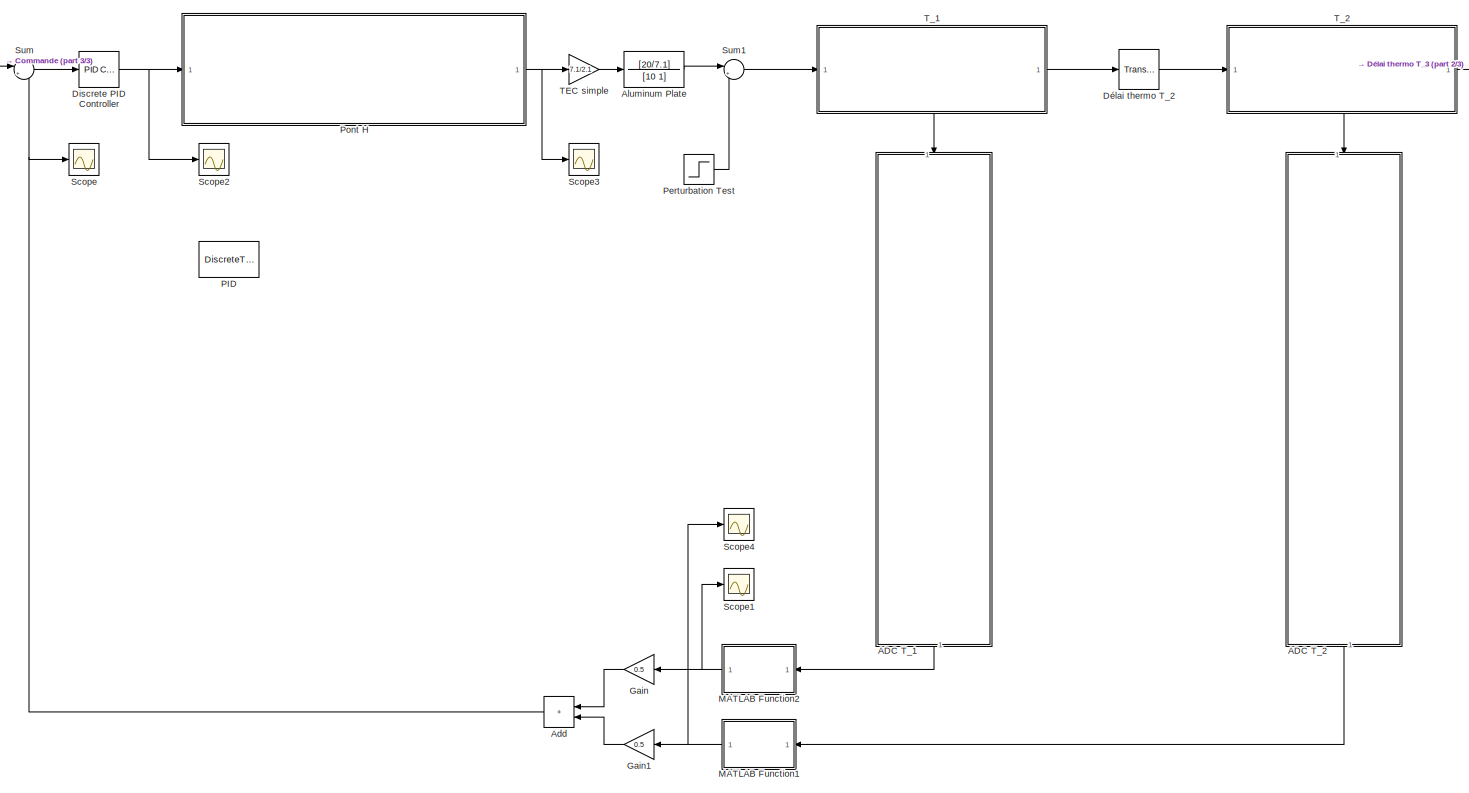
[diagram: root canvas - part 1/3, most of the canvas]
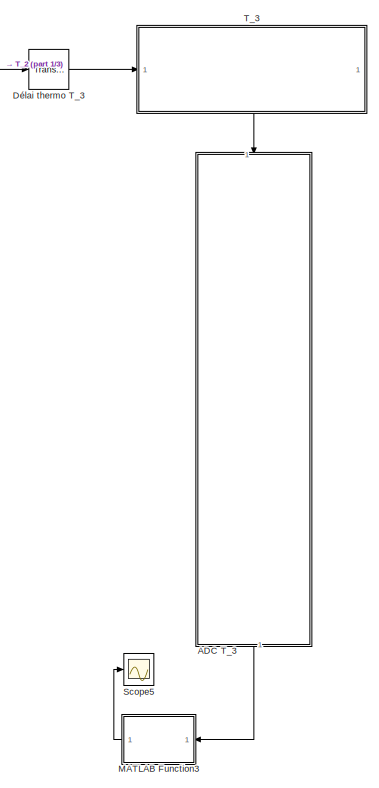
[diagram: root canvas - part 2/3, right side, full height]
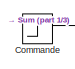
[diagram: root canvas - part 3/3, top left region]
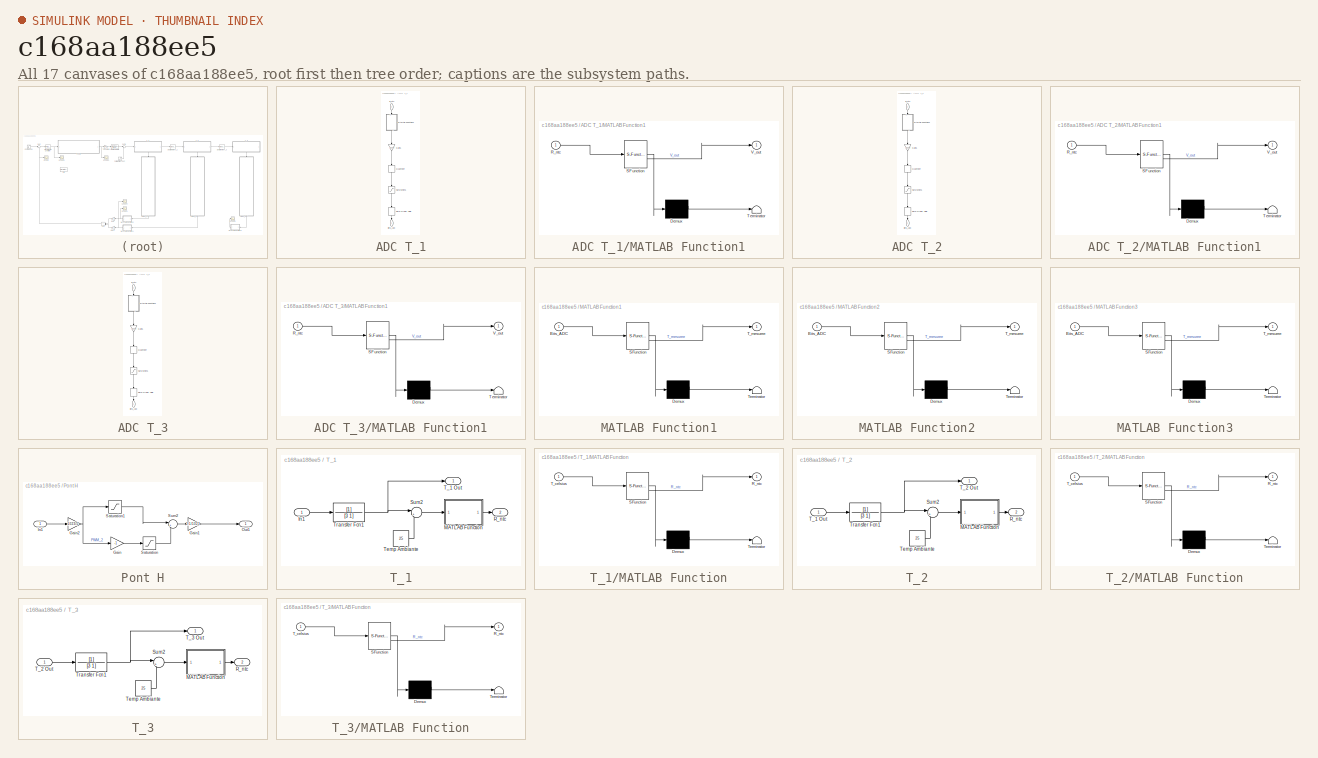
[diagram: thumbnail index - all 17 canvases of the model, root first then tree order]
MODEL slx_c168aa188ee5
KIND model
CONFIG AbsTol = auto
CONFIG EnableMultiTasking = off
CONFIG FixedStep = auto
CONFIG MaxStep = auto
CONFIG MinStep = auto
CONFIG RelTol = 1e-3
CONFIG SampleTimeConstraint = Unconstrained
CONFIG SolverName = VariableStepAuto
CONFIG StartTime = 0.0
CONFIG StopTime = 200
WORKSPACE source: mxarray member
WORKSPACE b_1: Simulink.Parameter (value not decoded)
WORKSPACE b_2: Simulink.Parameter (value not decoded)
WORKSPACE b_3: Simulink.Parameter (value not decoded)
BLOCK [SubSystem] ADC T_1
  NameLocation = left
BLOCK [Outport] ADC T_1/Bits_ADC
  NameLocation = left
BLOCK [Gain] ADC T_1/Gain1
  Gain = 1023/5
  NameLocation = left
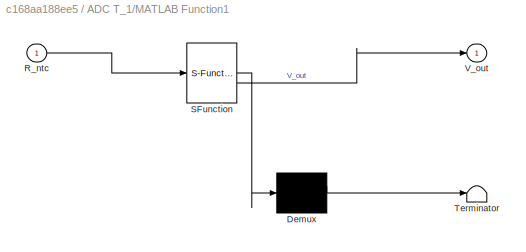
BLOCK [SubSystem] ADC T_1/MATLAB Function1
  ErrorFcn = Stateflow.Translate.translate
  NameLocation = left
  PermitHierarchicalResolution = ExplicitOnly
  SFBlockType = MATLAB Function
  TreatAsAtomicUnit = on
BLOCK [Demux] ADC T_1/MATLAB Function1/ Demux 
  Outputs = 1
BLOCK [S-Function] ADC T_1/MATLAB Function1/ SFunction 
  EnableBusSupport = on
  FunctionName = sf_sfun
  PortCounts = [1 2]
  SFcnIsStateOwnerBlock = off
  SFunctionDeploymentMode = off
  Tag = Stateflow S-Function 1
BLOCK [Terminator] ADC T_1/MATLAB Function1/ Terminator 
BLOCK [Inport] ADC T_1/MATLAB Function1/R_ntc
BLOCK [Outport] ADC T_1/MATLAB Function1/V_out
BLOCK [Quantizer] ADC T_1/Quantizer
  NameLocation = left
  QuantizationInterval = 1
BLOCK [Inport] ADC T_1/R_ntc
  NameLocation = left
BLOCK [Saturate] ADC T_1/Saturation1
  LowerLimit = 0
  NameLocation = left
  UpperLimit = 1023
BLOCK [ZeroOrderHold] ADC T_1/Zero-Order Hold
  NameLocation = left
  SampleTime = 0.01
BLOCK [SubSystem] ADC T_2
  NameLocation = left
BLOCK [Outport] ADC T_2/Bits_ADC
  NameLocation = left
BLOCK [Gain] ADC T_2/Gain1
  Gain = 1023/5
  NameLocation = left
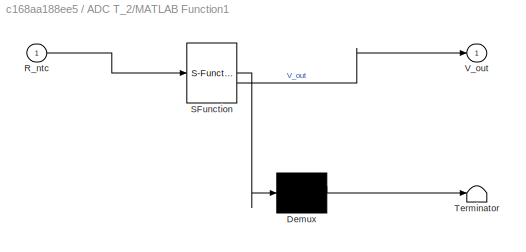
BLOCK [SubSystem] ADC T_2/MATLAB Function1
  ErrorFcn = Stateflow.Translate.translate
  NameLocation = left
  PermitHierarchicalResolution = ExplicitOnly
  SFBlockType = MATLAB Function
  TreatAsAtomicUnit = on
BLOCK [Demux] ADC T_2/MATLAB Function1/ Demux 
  Outputs = 1
BLOCK [S-Function] ADC T_2/MATLAB Function1/ SFunction 
  EnableBusSupport = on
  FunctionName = sf_sfun
  PortCounts = [1 2]
  SFcnIsStateOwnerBlock = off
  SFunctionDeploymentMode = off
  Tag = Stateflow S-Function 5
BLOCK [Terminator] ADC T_2/MATLAB Function1/ Terminator 
BLOCK [Inport] ADC T_2/MATLAB Function1/R_ntc
BLOCK [Outport] ADC T_2/MATLAB Function1/V_out
BLOCK [Quantizer] ADC T_2/Quantizer
  NameLocation = left
  QuantizationInterval = 1
BLOCK [Inport] ADC T_2/R_ntc
  NameLocation = left
BLOCK [Saturate] ADC T_2/Saturation1
  LowerLimit = 0
  NameLocation = left
  UpperLimit = 1023
BLOCK [ZeroOrderHold] ADC T_2/Zero-Order Hold
  NameLocation = left
  SampleTime = 0.01
BLOCK [SubSystem] ADC T_3
  NameLocation = left
BLOCK [Outport] ADC T_3/Bits_ADC
  NameLocation = left
BLOCK [Gain] ADC T_3/Gain1
  Gain = 1023/5
  NameLocation = left
BLOCK [SubSystem] ADC T_3/MATLAB Function1
  ErrorFcn = Stateflow.Translate.translate
  NameLocation = left
  PermitHierarchicalResolution = ExplicitOnly
  SFBlockType = MATLAB Function
  TreatAsAtomicUnit = on
BLOCK [Demux] ADC T_3/MATLAB Function1/ Demux 
  Outputs = 1
BLOCK [S-Function] ADC T_3/MATLAB Function1/ SFunction 
  EnableBusSupport = on
  FunctionName = sf_sfun
  PortCounts = [1 2]
  SFcnIsStateOwnerBlock = off
  SFunctionDeploymentMode = off
  Tag = Stateflow S-Function 7
BLOCK [Terminator] ADC T_3/MATLAB Function1/ Terminator 
BLOCK [Inport] ADC T_3/MATLAB Function1/R_ntc
BLOCK [Outport] ADC T_3/MATLAB Function1/V_out
BLOCK [Quantizer] ADC T_3/Quantizer
  NameLocation = left
  QuantizationInterval = 1
BLOCK [Inport] ADC T_3/R_ntc
  NameLocation = left
BLOCK [Saturate] ADC T_3/Saturation1
  LowerLimit = 0
  NameLocation = left
  UpperLimit = 1023
BLOCK [ZeroOrderHold] ADC T_3/Zero-Order Hold
  NameLocation = left
  SampleTime = 0.01
BLOCK [Sum] Add
  IconShape = rectangular
  NameLocation = top
BLOCK [TransferFcn] Aluminum Plate
  Denominator = [10 1]
  Numerator = [20/7.1]
BLOCK [Step] Commande
  After = 40
  Before = 25
  SampleTime = 0
  Time = 0
BLOCK [Reference] Discrete PID Controller  REF=slpidlib/PID Controller
  LibrarySourceBlock = simulink/Discrete/Discrete PID Controller
  SourceBlock = slpidlib/PID Controller
  SourceType = PID 1dof
BLOCK [TransportDelay] Délai thermo T_2
  DelayTime = 7
BLOCK [TransportDelay] Délai thermo T_3
  DelayTime = 14
BLOCK [Gain] Gain
  Gain = 0.5
  NameLocation = top
BLOCK [Gain] Gain1
  Gain = 0.5
  NameLocation = top
BLOCK [SubSystem] MATLAB Function1
  ErrorFcn = Stateflow.Translate.translate
  NameLocation = top
  PermitHierarchicalResolution = ExplicitOnly
  SFBlockType = MATLAB Function
  TreatAsAtomicUnit = on
BLOCK [Demux] MATLAB Function1/ Demux 
  Outputs = 1
BLOCK [S-Function] MATLAB Function1/ SFunction 
  EnableBusSupport = on
  FunctionName = sf_sfun
  PortCounts = [1 2]
  SFcnIsStateOwnerBlock = off
  SFunctionDeploymentMode = off
  Tag = Stateflow S-Function 6
BLOCK [Terminator] MATLAB Function1/ Terminator 
BLOCK [Inport] MATLAB Function1/Bits_ADC
BLOCK [Outport] MATLAB Function1/T_mesuree
BLOCK [SubSystem] MATLAB Function2
  ErrorFcn = Stateflow.Translate.translate
  NameLocation = top
  PermitHierarchicalResolution = ExplicitOnly
  SFBlockType = MATLAB Function
  TreatAsAtomicUnit = on
BLOCK [Demux] MATLAB Function2/ Demux 
  Outputs = 1
BLOCK [S-Function] MATLAB Function2/ SFunction 
  EnableBusSupport = on
  FunctionName = sf_sfun
  PortCounts = [1 2]
  SFcnIsStateOwnerBlock = off
  SFunctionDeploymentMode = off
  Tag = Stateflow S-Function 3
BLOCK [Terminator] MATLAB Function2/ Terminator 
BLOCK [Inport] MATLAB Function2/Bits_ADC
BLOCK [Outport] MATLAB Function2/T_mesuree
BLOCK [SubSystem] MATLAB Function3
  ErrorFcn = Stateflow.Translate.translate
  NameLocation = top
  PermitHierarchicalResolution = ExplicitOnly
  SFBlockType = MATLAB Function
  TreatAsAtomicUnit = on
BLOCK [Demux] MATLAB Function3/ Demux 
  Outputs = 1
BLOCK [S-Function] MATLAB Function3/ SFunction 
  EnableBusSupport = on
  FunctionName = sf_sfun
  PortCounts = [1 2]
  SFcnIsStateOwnerBlock = off
  SFunctionDeploymentMode = off
  Tag = Stateflow S-Function 9
BLOCK [Terminator] MATLAB Function3/ Terminator 
BLOCK [Inport] MATLAB Function3/Bits_ADC
BLOCK [Outport] MATLAB Function3/T_mesuree
BLOCK [DiscreteTransferFcn] PID
  Denominator = PID_DEN
  InputPortMap = u0
  Numerator = PID_NUM
BLOCK [Step] Perturbation Test
  After = 0
  SampleTime = 0
  Time = 0
BLOCK [SubSystem] Pont H
BLOCK [Gain] Pont H/Gain
  Gain = -1
BLOCK [Gain] Pont H/Gain1
  Gain = 2.1/1023
BLOCK [Gain] Pont H/Gain2
  Gain = 1023/5
BLOCK [Inport] Pont H/In1
BLOCK [Outport] Pont H/Out1
BLOCK [Saturate] Pont H/Saturation
  LowerLimit = 0
  UpperLimit = 1023
BLOCK [Saturate] Pont H/Saturation1
  LowerLimit = 0
  UpperLimit = 1023
BLOCK [Sum] Pont H/Sum2
  Inputs = |+-
BLOCK [Scope] Scope
  Floating = off
  NumInputPorts = 1
  ScopeSpecificationString = Simulink.scopes.TimeScopeBlockCfg('CurrentConfiguration', extmgr.ConfigurationSet(extmgr.Configuration('Core','General UI',true),extmgr.Configuration('Core','Source UI',true),extmgr.Configuration('Sources','WiredSimulink',true),extmgr.Configuration('Visuals','Time Domain',true,'SerializedDisplays',{struct('MinYLimReal','-6.46923','MaxYLimReal','58.59703','YLabelReal','','MinYLimMag','0.00000','Max...<+1489ch>
BLOCK [Scope] Scope1
  Floating = off
  NumInputPorts = 1
  ScopeSpecificationString = Simulink.scopes.TimeScopeBlockCfg('CurrentConfiguration', extmgr.ConfigurationSet(extmgr.Configuration('Core','General UI',true),extmgr.Configuration('Core','Source UI',true),extmgr.Configuration('Sources','WiredSimulink',true,'DataLoggingVariableName','ScopeData3'),extmgr.Configuration('Visuals','Time Domain',true,'SerializedDisplays',{struct('MinYLimReal','22.45876','MaxYLimReal','47.43502','YLa...<+1543ch>
BLOCK [Scope] Scope2
  Floating = off
  NumInputPorts = 1
  ScopeSpecificationString = Simulink.scopes.TimeScopeBlockCfg('CurrentConfiguration', extmgr.ConfigurationSet(extmgr.Configuration('Core','General UI',true),extmgr.Configuration('Core','Source UI',true),extmgr.Configuration('Sources','WiredSimulink',true,'DataLoggingVariableName','ScopeData1'),extmgr.Configuration('Visuals','Time Domain',true,'SerializedDisplays',{struct('MinYLimReal','-485.91606','MaxYLimReal','4232.77277',...<+1597ch>
BLOCK [Scope] Scope3
  Floating = off
  NumInputPorts = 1
  ScopeSpecificationString = Simulink.scopes.TimeScopeBlockCfg('CurrentConfiguration', extmgr.ConfigurationSet(extmgr.Configuration('Core','General UI',true),extmgr.Configuration('Core','Source UI',true),extmgr.Configuration('Sources','WiredSimulink',true,'DataLoggingVariableName','ScopeData2'),extmgr.Configuration('Visuals','Time Domain',true,'SerializedDisplays',{struct('MinYLimReal','-2.625','MaxYLimReal','2.625','YLabelRe...<+1542ch>
BLOCK [Scope] Scope4
  Floating = off
  NumInputPorts = 1
  ScopeSpecificationString = Simulink.scopes.TimeScopeBlockCfg('CurrentConfiguration', extmgr.ConfigurationSet(extmgr.Configuration('Core','General UI',true),extmgr.Configuration('Core','Source UI',true),extmgr.Configuration('Sources','WiredSimulink',true,'DataLoggingVariableName','ScopeData4'),extmgr.Configuration('Visuals','Time Domain',true,'SerializedDisplays',{struct('MinYLimReal','22.47346','MaxYLimReal','47.30271','YLa...<+1543ch>
BLOCK [Scope] Scope5
  Floating = off
  NumInputPorts = 1
  ScopeSpecificationString = Simulink.scopes.TimeScopeBlockCfg('CurrentConfiguration', extmgr.ConfigurationSet(extmgr.Configuration('Core','General UI',true),extmgr.Configuration('Core','Source UI',true),extmgr.Configuration('Sources','WiredSimulink',true,'DataLoggingVariableName','ScopeData5'),extmgr.Configuration('Visuals','Time Domain',true,'SerializedDisplays',{struct('MinYLimReal','22.45876','MaxYLimReal','47.43502','YLa...<+1543ch>
BLOCK [Sum] Sum
  Inputs = |+-
BLOCK [Sum] Sum1
  Inputs = |++
BLOCK [Gain] TEC simple
  Gain = 7.1/2.1
BLOCK [SubSystem] T_1
  PortSchema = {"entries":[{"content":{"sides":[{"content":{"connectorIds":["In1"]},"type":"ConnectorPlacement.EquallySpacedRectSide","uuid":"9022bc75-f2e1-4756-aed7-8214847faad0"},{"content":{"connectorIds":["Out1"],"side":"RIGHT"},"type":"ConnectorPlacement.EquallySpacedRectSide","uuid":"45d13b33-3548-4a7f-87ab-0833dbd02947"},{"content":{"side":"TOP"},"type":"ConnectorPlacement.EquallySpacedRectSide","uuid":"2...<+372ch>  <repeated x3 — deduplicated; at blocks: T_1, T_2, T_3>
BLOCK [Inport] T_1/In1
BLOCK [SubSystem] T_1/MATLAB Function
  ErrorFcn = Stateflow.Translate.translate
  PermitHierarchicalResolution = ExplicitOnly
  SFBlockType = MATLAB Function
  TreatAsAtomicUnit = on
BLOCK [Demux] T_1/MATLAB Function/ Demux 
  Outputs = 1
BLOCK [S-Function] T_1/MATLAB Function/ SFunction 
  EnableBusSupport = on
  FunctionName = sf_sfun
  PortCounts = [1 2]
  SFcnIsStateOwnerBlock = off
  SFunctionDeploymentMode = off
  Tag = Stateflow S-Function 2
BLOCK [Terminator] T_1/MATLAB Function/ Terminator 
BLOCK [Outport] T_1/MATLAB Function/R_ntc
BLOCK [Inport] T_1/MATLAB Function/T_celsius
BLOCK [Outport] T_1/R_ntc
  Port = 2
BLOCK [Sum] T_1/Sum2
  Inputs = |++
BLOCK [Outport] T_1/T_1 Out
BLOCK [Constant] T_1/Temp Ambiante
  Value = 25
BLOCK [TransferFcn] T_1/Transfer Fcn1
  Denominator = [3 1]
BLOCK [SubSystem] T_2
BLOCK [SubSystem] T_2/MATLAB Function
  ErrorFcn = Stateflow.Translate.translate
  PermitHierarchicalResolution = ExplicitOnly
  SFBlockType = MATLAB Function
  TreatAsAtomicUnit = on
BLOCK [Demux] T_2/MATLAB Function/ Demux 
  Outputs = 1
BLOCK [S-Function] T_2/MATLAB Function/ SFunction 
  EnableBusSupport = on
  FunctionName = sf_sfun
  PortCounts = [1 2]
  SFcnIsStateOwnerBlock = off
  SFunctionDeploymentMode = off
  Tag = Stateflow S-Function 4
BLOCK [Terminator] T_2/MATLAB Function/ Terminator 
BLOCK [Outport] T_2/MATLAB Function/R_ntc
BLOCK [Inport] T_2/MATLAB Function/T_celsius
BLOCK [Outport] T_2/R_ntc
  Port = 2
BLOCK [Sum] T_2/Sum2
  Inputs = |++
BLOCK [Inport] T_2/T_1 Out
BLOCK [Outport] T_2/T_2 Out
BLOCK [Constant] T_2/Temp Ambiante
  Value = 25
BLOCK [TransferFcn] T_2/Transfer Fcn1
  Denominator = [3 1]
BLOCK [SubSystem] T_3
BLOCK [SubSystem] T_3/MATLAB Function
  ErrorFcn = Stateflow.Translate.translate
  PermitHierarchicalResolution = ExplicitOnly
  SFBlockType = MATLAB Function
  TreatAsAtomicUnit = on
BLOCK [Demux] T_3/MATLAB Function/ Demux 
  Outputs = 1
BLOCK [S-Function] T_3/MATLAB Function/ SFunction 
  EnableBusSupport = on
  FunctionName = sf_sfun
  PortCounts = [1 2]
  SFcnIsStateOwnerBlock = off
  SFunctionDeploymentMode = off
  Tag = Stateflow S-Function 8
BLOCK [Terminator] T_3/MATLAB Function/ Terminator 
BLOCK [Outport] T_3/MATLAB Function/R_ntc
BLOCK [Inport] T_3/MATLAB Function/T_celsius
BLOCK [Outport] T_3/R_ntc
  Port = 2
BLOCK [Sum] T_3/Sum2
  Inputs = |++
BLOCK [Inport] T_3/T_2 Out
BLOCK [Outport] T_3/T_3 Out
BLOCK [Constant] T_3/Temp Ambiante
  Value = 25
BLOCK [TransferFcn] T_3/Transfer Fcn1
  Denominator = [3 1]
LINE ADC T_1/Gain1:1 -> ADC T_1/Quantizer:1
LINE ADC T_1/MATLAB Function1:1 -> ADC T_1/Gain1:1
LINE ADC T_1/Quantizer:1 -> ADC T_1/Saturation1:1
LINE ADC T_1/R_ntc:1 -> ADC T_1/MATLAB Function1:1
LINE ADC T_1/Saturation1:1 -> ADC T_1/Zero-Order Hold:1
LINE ADC T_1/Zero-Order Hold:1 -> ADC T_1/Bits_ADC:1
LINE ADC T_1:1 -> MATLAB Function2:1
LINE ADC T_2/Gain1:1 -> ADC T_2/Quantizer:1
LINE ADC T_2/MATLAB Function1:1 -> ADC T_2/Gain1:1
LINE ADC T_2/Quantizer:1 -> ADC T_2/Saturation1:1
LINE ADC T_2/R_ntc:1 -> ADC T_2/MATLAB Function1:1
LINE ADC T_2/Saturation1:1 -> ADC T_2/Zero-Order Hold:1
LINE ADC T_2/Zero-Order Hold:1 -> ADC T_2/Bits_ADC:1
LINE ADC T_2:1 -> MATLAB Function1:1
LINE ADC T_3/Gain1:1 -> ADC T_3/Quantizer:1
LINE ADC T_3/MATLAB Function1:1 -> ADC T_3/Gain1:1
LINE ADC T_3/Quantizer:1 -> ADC T_3/Saturation1:1
LINE ADC T_3/R_ntc:1 -> ADC T_3/MATLAB Function1:1
LINE ADC T_3/Saturation1:1 -> ADC T_3/Zero-Order Hold:1
LINE ADC T_3/Zero-Order Hold:1 -> ADC T_3/Bits_ADC:1
LINE ADC T_3:1 -> MATLAB Function3:1
NET Add:1 -> Scope:1, Sum:2
LINE Aluminum Plate:1 -> Sum1:1
LINE Commande:1 -> Sum:1
NET Discrete PID Controller:1 -> Pont H:1, Scope2:1
LINE Délai thermo T_2:1 -> T_2:1
LINE Délai thermo T_3:1 -> T_3:1
LINE Gain1:1 -> Add:2
LINE Gain:1 -> Add:1
NET MATLAB Function1:1 -> Gain1:1, Scope4:1
NET MATLAB Function2:1 -> Gain:1, Scope1:1
LINE MATLAB Function3:1 -> Scope5:1
LINE Perturbation Test:1 -> Sum1:2
LINE Pont H/Gain1:1 -> Pont H/Out1:1
NET Pont H/Gain2:1 -> Pont H/Gain:1, Pont H/Saturation1:1
LINE Pont H/Gain:1 -> Pont H/Saturation:1
LINE Pont H/In1:1 -> Pont H/Gain2:1
LINE Pont H/Saturation1:1 -> Pont H/Sum2:1
LINE Pont H/Saturation:1 -> Pont H/Sum2:2
LINE Pont H/Sum2:1 -> Pont H/Gain1:1
NET Pont H:1 -> Scope3:1, TEC simple:1
LINE Sum1:1 -> T_1:1
LINE Sum:1 -> Discrete PID Controller:1
LINE TEC simple:1 -> Aluminum Plate:1
LINE T_1/In1:1 -> T_1/Transfer Fcn1:1
LINE T_1/MATLAB Function:1 -> T_1/R_ntc:1
LINE T_1/Sum2:1 -> T_1/MATLAB Function:1
LINE T_1/Temp Ambiante:1 -> T_1/Sum2:2
NET T_1/Transfer Fcn1:1 -> T_1/Sum2:1, T_1/T_1 Out:1
LINE T_1:1 -> Délai thermo T_2:1
LINE T_1:2 -> ADC T_1:1
LINE T_2/MATLAB Function:1 -> T_2/R_ntc:1
LINE T_2/Sum2:1 -> T_2/MATLAB Function:1
LINE T_2/T_1 Out:1 -> T_2/Transfer Fcn1:1
LINE T_2/Temp Ambiante:1 -> T_2/Sum2:2
NET T_2/Transfer Fcn1:1 -> T_2/Sum2:1, T_2/T_2 Out:1
LINE T_2:1 -> Délai thermo T_3:1
LINE T_2:2 -> ADC T_2:1
LINE T_3/MATLAB Function:1 -> T_3/R_ntc:1
LINE T_3/Sum2:1 -> T_3/MATLAB Function:1
LINE T_3/T_2 Out:1 -> T_3/Transfer Fcn1:1
LINE T_3/Temp Ambiante:1 -> T_3/Sum2:2
NET T_3/Transfer Fcn1:1 -> T_3/Sum2:1, T_3/T_3 Out:1
LINE T_3:2 -> ADC T_3:1
note: NET lines group one-source signal fan-out (src -> all destinations, sorted); 1:1 wires keep LINE
CHART T_1/MATLAB Function states=1 transitions=1
  STATE_LABEL 'eML_blk_kernel()'
  STATE_LABEL 'SCRIPT:\nfunction R_ntc = temp2res(T_celsius)\n    % Paramètres de la thermistance NTCALUG02A\n    R25 = 10000;      % 10k Ohms à 25°C\n    T25 = 298.15;     % 25°C en Kelvin\n    Beta = 3984;      % Valeur B25/85 du tableau\n\n    T_kelvin = T_celsius + 273.15;\n    \n    % Équation simplifiée de Steinhart-Hart (Parameter B)\n    R_ntc = R25 * exp(Beta * (1/T_kelvin - 1/T25));\nend'  <repeated x3 — deduplicated; at blocks: MATLAB Function>
CHART MATLAB Function2 states=1 transitions=1
  STATE_LABEL 'eML_blk_kernel()'
  STATE_LABEL 'SCRIPT:\nfunction T_mesuree = bits2temp(Bits_ADC)\n    % Inverse exact de la chaîne précédente\n    V_source = 5;\n    R_fixe = 10000;\n    R25 = 10000;\n    T25 = 298.15;\n    Beta = 3984;\n\n    % 1. Bits en Voltage\n    V_mes = (Bits_ADC * V_source) / 1023;\n    \n    % 2. Voltage en Résistance (Inverse du pont diviseur)\n    % Attention à la division par zéro si V_mes est proche de V_source\n    R_ntc = (V_...<+204ch>'  <repeated x3 — deduplicated; at blocks: MATLAB Function2, MATLAB Function1, MATLAB Function3>
CHART T_2/MATLAB Function states=1 transitions=1
  STATE_LABEL 'eML_blk_kernel()'
CHART ADC T_2/MATLAB Function1 states=1 transitions=1
  STATE_LABEL 'eML_blk_kernel()'
  STATE_LABEL 'SCRIPT:\nfunction V_out = res2volt(R_ntc)\n    V_source = 5;     % Arduino fonctionne en 5V\n    R_fixe = 10000;   % Résistance du pont diviseur (À VÉRIFIER sur ton PCB!)\n    \n    % Formule du diviseur de tension\n    V_out = V_source * (R_ntc / (R_ntc + R_fixe));\nend'  <repeated x3 — deduplicated; at blocks: MATLAB Function1>
CHART MATLAB Function1 states=1 transitions=1
  STATE_LABEL 'eML_blk_kernel()'
CHART ADC T_3/MATLAB Function1 states=1 transitions=1
  STATE_LABEL 'eML_blk_kernel()'
CHART T_3/MATLAB Function states=1 transitions=1
  STATE_LABEL 'eML_blk_kernel()'
CHART MATLAB Function3 states=1 transitions=1
  STATE_LABEL 'eML_blk_kernel()'
CHART ADC T_1/MATLAB Function1 states=1 transitions=1
  STATE_LABEL 'eML_blk_kernel()'
CHART  states=0 transitions=0
CHART  states=0 transitions=0
CHART  states=0 transitions=0
CHART  states=0 transitions=0
CHART  states=0 transitions=0
CHART  states=0 transitions=0
CHART  states=0 transitions=0
CHART  states=0 transitions=0
CHART  states=0 transitions=0
